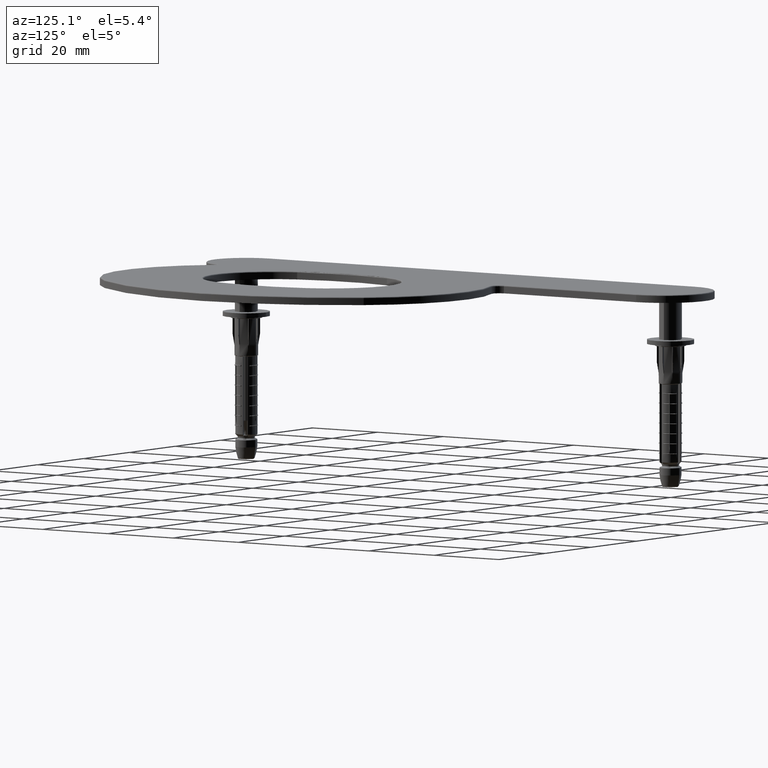
[diagram: clean part render]
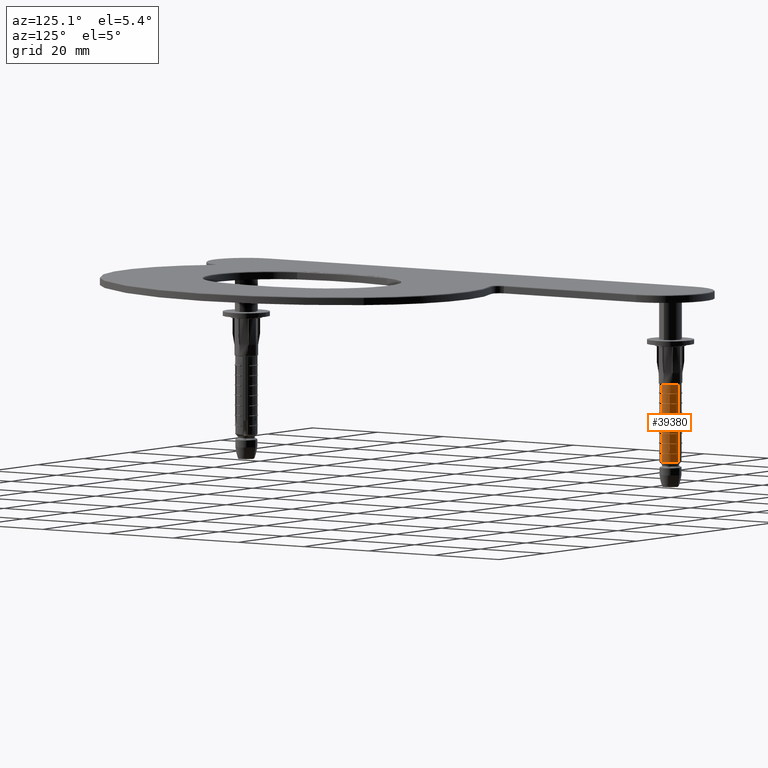
[diagram: same view with one face highlighted and labeled with its STEP entity id]
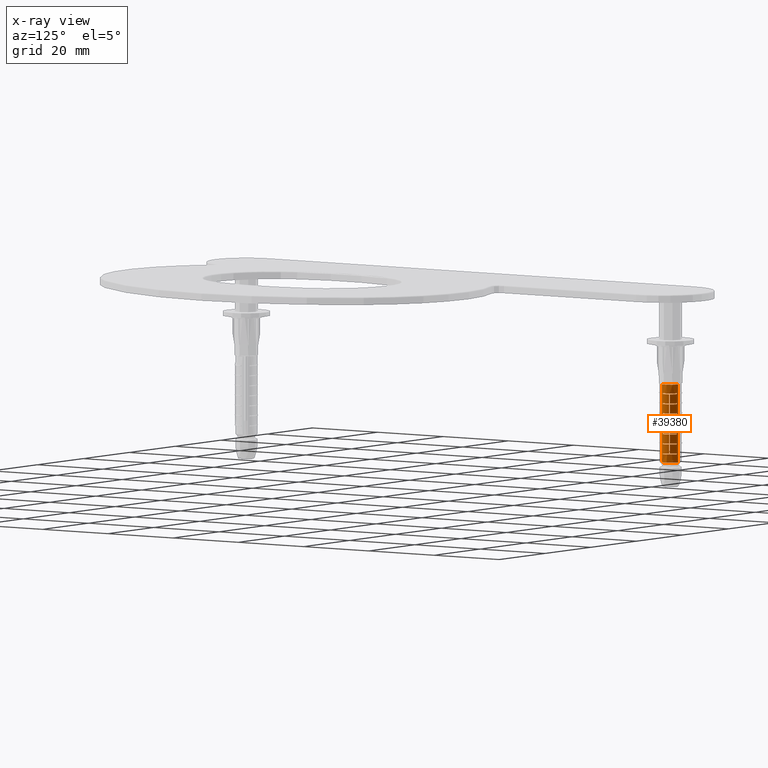
[diagram: x-ray of the same camera — body ghosted, the highlighted face saturated]
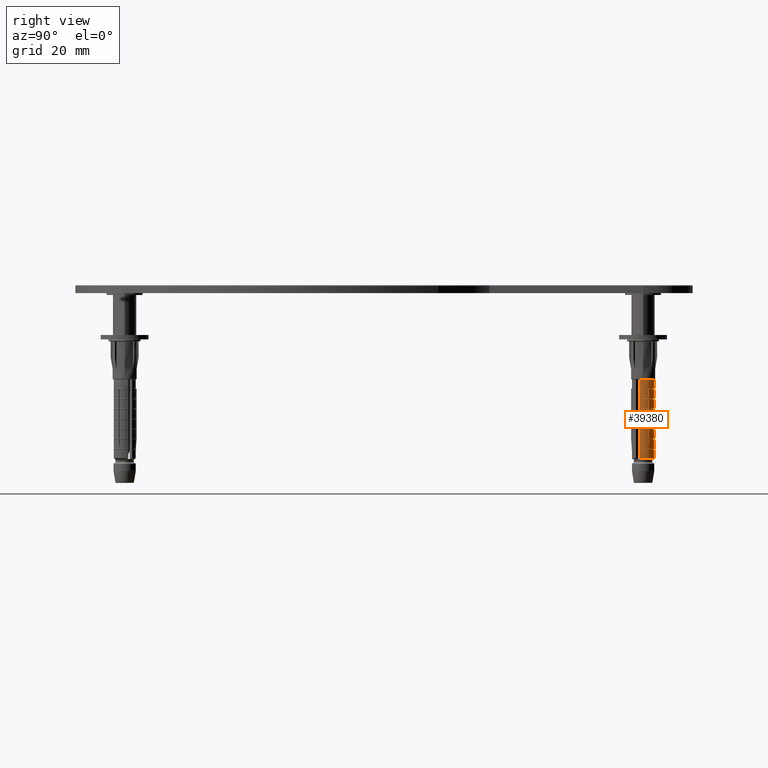
[diagram: same view with one face highlighted and labeled with its STEP entity id]
A machine part, auxiliary view. The second image highlights one B-rep face of the part: STEP entity #39380.
The next image is the same camera in x-ray: the body ghosted, the highlighted face saturated — about 0% of this face is hidden behind the body in this view.
A second angle (right view) of the same face is appended — the face is thin or edge-on in the first view.
In plain terms, the highlighted cylindrical surface (edge-blend (fillet) strip) has radius 2.8 mm, axis along (0, 0, -1).
Its self-contained STEP definition (entity closure, byte-faithful):
#49 = ORIENTED_EDGE ( 'NONE', *, *, #6726, .T. ) ;
#77 = CARTESIAN_POINT ( 'NONE',  ( -2.483748580117769222, -1.292668940898235252, -36.00000000000000000 ) ) ;
#89 = CARTESIAN_POINT ( 'NONE',  ( -2.361358431559909210, -1.504654896546356424, -36.00000000000000000 ) ) ;
#115 = DIRECTION ( 'NONE',  ( -4.540655609425253692E-18, 4.182044590197414905E-18, 1.000000000000000000 ) ) ;
#459 = VERTEX_POINT ( 'NONE', #19721 ) ;
#529 = CARTESIAN_POINT ( 'NONE',  ( -2.361358431559909210, -1.504654896546356424, -36.00000000000000000 ) ) ;
#640 = ORIENTED_EDGE ( 'NONE', *, *, #37300, .T. ) ;
#813 = CARTESIAN_POINT ( 'NONE',  ( -2.483748580117769222, -1.292668940898235030, -36.00000000000000000 ) ) ;
#876 = CARTESIAN_POINT ( 'NONE',  ( -2.767673818475162140, 0.4242424242424546743, -36.00000000000000000 ) ) ;
#1065 = CARTESIAN_POINT ( 'NONE',  ( -2.460687915453515284, -1.336044528726880731, -27.57499999999999574 ) ) ;
#1071 = CARTESIAN_POINT ( 'NONE',  ( -2.393379353113320729, -1.453181087163902374, -27.47499999999999076 ) ) ;
#1154 = VERTEX_POINT ( 'NONE', #15233 ) ;
#1242 = AXIS2_PLACEMENT_3D ( 'NONE', #15415, #37140, #10313 ) ;
#1484 = CARTESIAN_POINT ( 'NONE',  ( -1.016432192480563934, -2.608997048309782407, -22.62500000000000000 ) ) ;
#1603 = CARTESIAN_POINT ( 'NONE',  ( -2.372170073811461055, -1.487569355360297108, -27.08807541499458083 ) ) ;
#1695 = EDGE_CURVE ( 'NONE', #6835, #35829, #36239, .T. ) ;
#1731 = EDGE_CURVE ( 'NONE', #37082, #8415, #13808, .T. ) ;
#1787 = EDGE_CURVE ( 'NONE', #8415, #15973, #19591, .T. ) ;
#1789 = CARTESIAN_POINT ( 'NONE',  ( 6.742873579996503373E-17, -6.210336216443161118E-17, -14.84999999999999964 ) ) ;
#1815 = VERTEX_POINT ( 'NONE', #37979 ) ;
#2101 = DIRECTION ( 'NONE',  ( 0.000000000000000000, 6.803593328596414068E-18, 1.000000000000000000 ) ) ;
#2254 = CARTESIAN_POINT ( 'NONE',  ( -1.016432192480564378, -2.608997048309782407, -20.10000000000000142 ) ) ;
#2301 = EDGE_CURVE ( 'NONE', #10385, #6835, #17183, .T. ) ;
#2321 = CARTESIAN_POINT ( 'NONE',  ( 1.141974885770451016E-16, -1.051784214434649850E-16, -25.14999999999999858 ) ) ;
#2377 = DIRECTION ( 'NONE',  ( -0.000000000000000000, -6.803593328596414068E-18, -1.000000000000000000 ) ) ;
#2496 = CARTESIAN_POINT ( 'NONE',  ( -2.483748580117769222, -1.292668940898234586, -19.89999999999999858 ) ) ;
#2679 = CARTESIAN_POINT ( 'NONE',  ( -1.016432192480563712, -2.608997048309782407, -36.00000000000000000 ) ) ;
#2697 = VERTEX_POINT ( 'NONE', #31034 ) ;
#2748 = LINE ( 'NONE', #77, #19473 ) ;
#2810 = CARTESIAN_POINT ( 'NONE',  ( -2.361358431559908766, -1.504654896546356424, -22.62500000000000000 ) ) ;
#2812 = ORIENTED_EDGE ( 'NONE', *, *, #38035, .T. ) ;
#2945 = CIRCLE ( 'NONE', #18300, 2.799999999999999822 ) ;
#2960 = AXIS2_PLACEMENT_3D ( 'NONE', #7755, #10594, #16742 ) ;
#3011 = VECTOR ( 'NONE', #26834, 1000.000000000000000 ) ;
#3118 = DIRECTION ( 'NONE',  ( 0.8660254037844433705, 0.4999999999999920064, 0.000000000000000000 ) ) ;
#3241 = CIRCLE ( 'NONE', #28605, 2.799999999999999822 ) ;
#3243 = CARTESIAN_POINT ( 'NONE',  ( 1.141974885770451016E-16, -1.051784214434649850E-16, -25.14999999999999858 ) ) ;
#3266 = AXIS2_PLACEMENT_3D ( 'NONE', #1789, #23405, #17433 ) ;
#3351 = DIRECTION ( 'NONE',  ( -4.540655609425253692E-18, 4.182044590197414905E-18, 1.000000000000000000 ) ) ;
#3387 = DIRECTION ( 'NONE',  ( 0.8660254037844433705, 0.4999999999999920064, 0.000000000000000000 ) ) ;
#3434 = ORIENTED_EDGE ( 'NONE', *, *, #35799, .T. ) ;
#3511 = EDGE_CURVE ( 'NONE', #9466, #33526, #14199, .T. ) ;
#3630 = DIRECTION ( 'NONE',  ( 0.8660254037844433705, 0.4999999999999920064, 0.000000000000000000 ) ) ;
#3678 = ORIENTED_EDGE ( 'NONE', *, *, #39284, .F. ) ;
#3721 = EDGE_CURVE ( 'NONE', #33701, #26721, #5086, .T. ) ;
#3727 = DIRECTION ( 'NONE',  ( -0.000000000000000000, -6.803593328596414068E-18, -1.000000000000000000 ) ) ;
#3750 = VECTOR ( 'NONE', #24966, 1000.000000000000000 ) ;
#3757 = DIRECTION ( 'NONE',  ( 0.000000000000000000, 6.803593328596414068E-18, 1.000000000000000000 ) ) ;
#3808 = DIRECTION ( 'NONE',  ( 0.8660254037844433705, 0.4999999999999920064, 0.000000000000000000 ) ) ;
#3902 = ORIENTED_EDGE ( 'NONE', *, *, #25455, .T. ) ;
#4131 = VECTOR ( 'NONE', #36120, 1000.000000000000000 ) ;
#4299 = ORIENTED_EDGE ( 'NONE', *, *, #25764, .F. ) ;
#4342 = DIRECTION ( 'NONE',  ( -0.000000000000000000, -6.803593328596414068E-18, -1.000000000000000000 ) ) ;
#4366 = DIRECTION ( 'NONE',  ( -5.892084659582852829E-18, -1.020538999289456486E-17, -1.000000000000000000 ) ) ;
#4473 = CARTESIAN_POINT ( 'NONE',  ( 7.889389121376377345E-17, -7.266302475468007665E-17, -17.37499999999999645 ) ) ;
#4487 = ORIENTED_EDGE ( 'NONE', *, *, #27892, .T. ) ;
#4536 = EDGE_CURVE ( 'NONE', #17000, #37439, #17544, .T. ) ;
#4548 = FACE_BOUND ( 'NONE', #28893, .T. ) ;
#4646 = DIRECTION ( 'NONE',  ( 0.000000000000000000, 6.803593328596414068E-18, 1.000000000000000000 ) ) ;
#4761 = VERTEX_POINT ( 'NONE', #5365 ) ;
#4767 = CARTESIAN_POINT ( 'NONE',  ( -2.361358431559908766, -1.504654896546356424, -25.14999999999999858 ) ) ;
#4789 = CARTESIAN_POINT ( 'NONE',  ( -0.6222222222222226762, -2.729988920521994267, -36.00000000000000000 ) ) ;
#4961 = ORIENTED_EDGE ( 'NONE', *, *, #12246, .F. ) ;
#5027 = CYLINDRICAL_SURFACE ( 'NONE', #36083, 2.799999999999999822 ) ;
#5052 = VECTOR ( 'NONE', #18547, 1000.000000000000000 ) ;
#5086 = CIRCLE ( 'NONE', #26464, 2.799999999999999822 ) ;
#5096 = DIRECTION ( 'NONE',  ( -4.540655609425253692E-18, 4.182044590197414905E-18, 1.000000000000000000 ) ) ;
#5114 = ORIENTED_EDGE ( 'NONE', *, *, #36093, .T. ) ;
#5182 = EDGE_CURVE ( 'NONE', #15628, #20308, #5521, .T. ) ;
#5209 = EDGE_CURVE ( 'NONE', #39145, #13306, #39409, .T. ) ;
#5327 = EDGE_CURVE ( 'NONE', #9466, #35493, #21531, .T. ) ;
#5332 = AXIS2_PLACEMENT_3D ( 'NONE', #20093, #31751, #3808 ) ;
#5365 = CARTESIAN_POINT ( 'NONE',  ( -2.767673818475162140, 0.4242424242424547298, -12.52500000000000213 ) ) ;
#5421 = CARTESIAN_POINT ( 'NONE',  ( -2.767673818475162140, 0.4242424242424543412, -36.00000000000000000 ) ) ;
#5481 = CIRCLE ( 'NONE', #32727, 2.799999999999999378 ) ;
#5521 = LINE ( 'NONE', #4789, #16546 ) ;
#5569 = CARTESIAN_POINT ( 'NONE',  ( -2.361358431559908766, -1.504654896546356424, -20.10000000000000142 ) ) ;
#5592 = LINE ( 'NONE', #36518, #34778 ) ;
#5647 = VERTEX_POINT ( 'NONE', #20552 ) ;
#5708 = CARTESIAN_POINT ( 'NONE',  ( -2.361358431559909210, -1.504654896546356424, -36.00000000000000000 ) ) ;
#5756 = ORIENTED_EDGE ( 'NONE', *, *, #20860, .F. ) ;
#5818 = ORIENTED_EDGE ( 'NONE', *, *, #32358, .F. ) ;
#5961 = ORIENTED_EDGE ( 'NONE', *, *, #7132, .T. ) ;
#6083 = CARTESIAN_POINT ( 'NONE',  ( -2.483748580117769222, -1.292668940898234808, -26.31052289814997636 ) ) ;
#6093 = CIRCLE ( 'NONE', #39522, 2.799999999999999822 ) ;
#6283 = B_SPLINE_CURVE_WITH_KNOTS ( 'NONE', 3,
 ( #38145, #29162, #29007, #7200, #1603, #37884, #28609, #1071 ),
 .UNSPECIFIED., .F., .F.,
 ( 4, 2, 2, 4 ),
 ( 0.000000000000000000, 0.0005836036533015558948, 0.0008754054799523338423, 0.001167207306603111790 ),
 .UNSPECIFIED. ) ;
#6317 = CARTESIAN_POINT ( 'NONE',  ( -2.767673818475161696, 0.4242424242424542857, -27.47499999999999076 ) ) ;
#6389 = ORIENTED_EDGE ( 'NONE', *, *, #26496, .F. ) ;
#6640 = CARTESIAN_POINT ( 'NONE',  ( -2.424871130596440771, -1.399999999999977263, -12.32500000000000107 ) ) ;
#6666 = ORIENTED_EDGE ( 'NONE', *, *, #5327, .T. ) ;
#6726 = EDGE_CURVE ( 'NONE', #33701, #22011, #34351, .T. ) ;
#6754 = DIRECTION ( 'NONE',  ( -4.540655609425253692E-18, 4.182044590197414905E-18, 1.000000000000000000 ) ) ;
#6787 = EDGE_CURVE ( 'NONE', #4761, #21786, #36697, .T. ) ;
#6835 = VERTEX_POINT ( 'NONE', #16468 ) ;
#7132 = EDGE_CURVE ( 'NONE', #2697, #14025, #15689, .T. ) ;
#7200 = CARTESIAN_POINT ( 'NONE',  ( -2.369438809451833272, -1.491903281495504885, -26.99099585964414771 ) ) ;
#7210 = CIRCLE ( 'NONE', #31845, 2.799999999999999378 ) ;
#7235 = CARTESIAN_POINT ( 'NONE',  ( 5.687171150805130437E-17, -5.238010849222262684E-17, -12.52500000000000213 ) ) ;
#7239 = ORIENTED_EDGE ( 'NONE', *, *, #8321, .T. ) ;
#7294 = CARTESIAN_POINT ( 'NONE',  ( -1.016432192480563712, -2.608997048309781963, -27.67499999999999361 ) ) ;
#7361 = DIRECTION ( 'NONE',  ( -4.540655609425253692E-18, 4.182044590197414905E-18, 1.000000000000000000 ) ) ;
#7412 = AXIS2_PLACEMENT_3D ( 'NONE', #3243, #24610, #3118 ) ;
#7495 = VERTEX_POINT ( 'NONE', #35760 ) ;
#7532 = VERTEX_POINT ( 'NONE', #17644 ) ;
#7656 = CIRCLE ( 'NONE', #24659, 2.799999999999999378 ) ;
#7660 = VECTOR ( 'NONE', #4646, 1000.000000000000000 ) ;
#7697 = CARTESIAN_POINT ( 'NONE',  ( -2.455181414339814072, -1.346136777107122207, -27.47499999999999076 ) ) ;
#7755 = CARTESIAN_POINT ( 'NONE',  ( 9.035904662756253783E-17, -8.322268734492854212E-17, -19.89999999999999858 ) ) ;
#7819 = CARTESIAN_POINT ( 'NONE',  ( -2.476745546490385141, -1.306042560950300802, -26.99099585964534498 ) ) ;
#7864 = AXIS2_PLACEMENT_3D ( 'NONE', #9144, #30788, #12504 ) ;
#7913 = CIRCLE ( 'NONE', #7864, 2.799999999999999822 ) ;
#7955 = CIRCLE ( 'NONE', #14281, 2.799999999999999822 ) ;
#7998 = CIRCLE ( 'NONE', #35514, 2.799999999999999822 ) ;
#8040 = CARTESIAN_POINT ( 'NONE',  ( 9.126717774944759751E-17, -8.405909626296804174E-17, -20.10000000000000142 ) ) ;
#8141 = EDGE_CURVE ( 'NONE', #22011, #8732, #7998, .T. ) ;
#8166 = VERTEX_POINT ( 'NONE', #23195 ) ;
#8321 = EDGE_CURVE ( 'NONE', #8732, #14788, #2748, .T. ) ;
#8415 = VERTEX_POINT ( 'NONE', #21843 ) ;
#8485 = CARTESIAN_POINT ( 'NONE',  ( -2.767673818475161696, 0.4242424242424544523, -19.89999999999999858 ) ) ;
#8543 = CARTESIAN_POINT ( 'NONE',  ( -2.361358431559908322, -1.504654896546355980, -17.37499999999999645 ) ) ;
#8652 = EDGE_CURVE ( 'NONE', #25713, #27324, #7955, .T. ) ;
#8661 = DIRECTION ( 'NONE',  ( 0.000000000000000000, 1.000000000000000000, 0.000000000000000000 ) ) ;
#8662 = CARTESIAN_POINT ( 'NONE',  ( -2.483748580117769222, -1.292668940898234808, -22.42499999999999716 ) ) ;
#8719 = EDGE_CURVE ( 'NONE', #32670, #1154, #26163, .T. ) ;
#8732 = VERTEX_POINT ( 'NONE', #8662 ) ;
#8816 = VECTOR ( 'NONE', #2377, 1000.000000000000000 ) ;
#8868 = VECTOR ( 'NONE', #2101, 1000.000000000000000 ) ;
#8982 = LINE ( 'NONE', #19111, #23317 ) ;
#9019 = DIRECTION ( 'NONE',  ( 0.000000000000000000, 6.803593328596414068E-18, 1.000000000000000000 ) ) ;
#9083 = DIRECTION ( 'NONE',  ( 0.8660254037844433705, 0.4999999999999920064, 0.000000000000000000 ) ) ;
#9144 = CARTESIAN_POINT ( 'NONE',  ( 1.256626439908438660E-16, -1.157380840337134382E-16, -27.67499999999999361 ) ) ;
#9182 = DIRECTION ( 'NONE',  ( 0.8660254037844433705, 0.4999999999999920064, 0.000000000000000000 ) ) ;
#9197 = EDGE_CURVE ( 'NONE', #17223, #35829, #7913, .T. ) ;
#9203 = CARTESIAN_POINT ( 'NONE',  ( -2.361358431559908322, -1.504654896546355980, -12.52500000000000213 ) ) ;
#9423 = ORIENTED_EDGE ( 'NONE', *, *, #36022, .T. ) ;
#9466 = VERTEX_POINT ( 'NONE', #17176 ) ;
#9546 = EDGE_CURVE ( 'NONE', #39368, #18718, #32775, .T. ) ;
#9567 = ORIENTED_EDGE ( 'NONE', *, *, #9546, .T. ) ;
#9660 = LINE ( 'NONE', #5421, #3011 ) ;
#9739 = CARTESIAN_POINT ( 'NONE',  ( -2.483748580117769222, -1.292668940898234808, -25.14999999999999858 ) ) ;
#9818 = ORIENTED_EDGE ( 'NONE', *, *, #35015, .F. ) ;
#10081 = ORIENTED_EDGE ( 'NONE', *, *, #16140, .T. ) ;
#10114 = DIRECTION ( 'NONE',  ( 0.8660254037844433705, 0.4999999999999920064, 0.000000000000000000 ) ) ;
#10209 = VECTOR ( 'NONE', #3757, 1000.000000000000000 ) ;
#10313 = DIRECTION ( 'NONE',  ( 0.8660254037844433705, 0.4999999999999920064, 0.000000000000000000 ) ) ;
#10328 = VECTOR ( 'NONE', #19590, 1000.000000000000000 ) ;
#10368 = DIRECTION ( 'NONE',  ( -4.540655609425253692E-18, 4.182044590197414905E-18, 1.000000000000000000 ) ) ;
#10385 = VERTEX_POINT ( 'NONE', #32258 ) ;
#10461 = DIRECTION ( 'NONE',  ( -0.000000000000000000, -6.803593328596414068E-18, -1.000000000000000000 ) ) ;
#10502 = AXIS2_PLACEMENT_3D ( 'NONE', #39437, #21089, #27512 ) ;
#10512 = CARTESIAN_POINT ( 'NONE',  ( 1.132893574551600419E-16, -1.043420125254254854E-16, -24.94999999999999574 ) ) ;
#10527 = DIRECTION ( 'NONE',  ( 0.8660254037844433705, 0.4999999999999920064, 0.000000000000000000 ) ) ;
#10594 = DIRECTION ( 'NONE',  ( -4.540655609425253692E-18, 4.182044590197414905E-18, 1.000000000000000000 ) ) ;
#10808 = CARTESIAN_POINT ( 'NONE',  ( -2.767673818475162140, 0.4242424242424544523, -25.14999999999999858 ) ) ;
#10840 = VECTOR ( 'NONE', #28279, 1000.000000000000000 ) ;
#10854 = EDGE_CURVE ( 'NONE', #21138, #39368, #24578, .T. ) ;
#11001 = CARTESIAN_POINT ( 'NONE',  ( -1.016432192480563712, -2.608997048309781963, -22.42499999999999716 ) ) ;
#11066 = LINE ( 'NONE', #13568, #33103 ) ;
#11278 = ORIENTED_EDGE ( 'NONE', *, *, #39064, .T. ) ;
#11299 = LINE ( 'NONE', #16225, #10840 ) ;
#11309 = VERTEX_POINT ( 'NONE', #14588 ) ;
#11317 = CARTESIAN_POINT ( 'NONE',  ( -2.455181414339814072, -1.346136777107122207, -27.47499999999999076 ) ) ;
#11424 = CARTESIAN_POINT ( 'NONE',  ( -2.483748580117769222, -1.292668940898234808, -20.10000000000000142 ) ) ;
#11479 = ORIENTED_EDGE ( 'NONE', *, *, #3511, .F. ) ;
#11541 = EDGE_LOOP ( 'NONE', ( #11278, #27306, #22735, #32766 ) ) ;
#11801 = VERTEX_POINT ( 'NONE', #17103 ) ;
#12229 = CIRCLE ( 'NONE', #39385, 2.799999999999999822 ) ;
#12246 = EDGE_CURVE ( 'NONE', #19438, #1815, #32177, .T. ) ;
#12274 = DIRECTION ( 'NONE',  ( 0.8660254037844433705, 0.4999999999999920064, 0.000000000000000000 ) ) ;
#12284 = DIRECTION ( 'NONE',  ( 0.000000000000000000, 6.803593328596413297E-18, 1.000000000000000000 ) ) ;
#12309 = LINE ( 'NONE', #36253, #4131 ) ;
#12384 = VECTOR ( 'NONE', #10461, 1000.000000000000000 ) ;
#12412 = ORIENTED_EDGE ( 'NONE', *, *, #37779, .T. ) ;
#12504 = DIRECTION ( 'NONE',  ( 0.8660254037844433705, 0.4999999999999920064, 0.000000000000000000 ) ) ;
#12572 = CARTESIAN_POINT ( 'NONE',  ( 9.126717774944759751E-17, -8.405909626296804174E-17, -20.10000000000000142 ) ) ;
#12588 = CARTESIAN_POINT ( 'NONE',  ( 5.596358038616625703E-17, -5.154369957418313338E-17, -12.32500000000000107 ) ) ;
#12715 = AXIS2_PLACEMENT_3D ( 'NONE', #7235, #7361, #38046 ) ;
#12722 = AXIS2_PLACEMENT_3D ( 'NONE', #18270, #36769, #18401 ) ;
#12740 = DIRECTION ( 'NONE',  ( 0.000000000000000000, 1.000000000000000000, 0.000000000000000000 ) ) ;
#12793 = CARTESIAN_POINT ( 'NONE',  ( -1.016432192480563490, -2.608997048309781519, -12.32500000000000107 ) ) ;
#12899 = ORIENTED_EDGE ( 'NONE', *, *, #17646, .T. ) ;
#12927 = DIRECTION ( 'NONE',  ( 0.8660254037844433705, 0.4999999999999920064, 0.000000000000000000 ) ) ;
#13102 = EDGE_CURVE ( 'NONE', #17223, #26468, #9660, .T. ) ;
#13168 = LINE ( 'NONE', #38770, #8868 ) ;
#13276 = CARTESIAN_POINT ( 'NONE',  ( -1.016432192480563712, -2.608997048309781519, -14.84999999999999964 ) ) ;
#13298 = CARTESIAN_POINT ( 'NONE',  ( -2.767673818475162140, 0.4242424242424543412, -27.67499999999999361 ) ) ;
#13306 = VERTEX_POINT ( 'NONE', #1484 ) ;
#13568 = CARTESIAN_POINT ( 'NONE',  ( -1.016432192480563712, -2.608997048309782407, -36.00000000000000000 ) ) ;
#13665 = CIRCLE ( 'NONE', #7412, 2.799999999999999822 ) ;
#13669 = DIRECTION ( 'NONE',  ( -4.540655609425253692E-18, 4.182044590197414905E-18, 1.000000000000000000 ) ) ;
#13699 = CIRCLE ( 'NONE', #37371, 2.799999999999999822 ) ;
#13703 = LINE ( 'NONE', #19770, #16118 ) ;
#13756 = DIRECTION ( 'NONE',  ( 0.8660254037844433705, 0.4999999999999920064, 0.000000000000000000 ) ) ;
#13808 = LINE ( 'NONE', #15887, #22886 ) ;
#13839 = VERTEX_POINT ( 'NONE', #30598 ) ;
#13897 = EDGE_CURVE ( 'NONE', #21490, #29757, #24004, .T. ) ;
#14025 = VERTEX_POINT ( 'NONE', #6640 ) ;
#14123 = CARTESIAN_POINT ( 'NONE',  ( -2.463716330369619456, -1.330570181226455873, -27.37920234786883356 ) ) ;
#14135 = CIRCLE ( 'NONE', #26611, 2.799999999999999378 ) ;
#14199 = CIRCLE ( 'NONE', #16430, 2.799999999999999378 ) ;
#14281 = AXIS2_PLACEMENT_3D ( 'NONE', #8040, #13669, #35165 ) ;
#14359 = DIRECTION ( 'NONE',  ( 0.8660254037844433705, 0.4999999999999920064, 0.000000000000000000 ) ) ;
#14462 = CARTESIAN_POINT ( 'NONE',  ( -2.460687915453515728, -1.336044528726880731, -22.62500000000000000 ) ) ;
#14482 = EDGE_CURVE ( 'NONE', #17300, #1815, #11066, .T. ) ;
#14588 = CARTESIAN_POINT ( 'NONE',  ( -2.361358431559908766, -1.504654896546356424, -22.42499999999999716 ) ) ;
#14788 = VERTEX_POINT ( 'NONE', #11424 ) ;
#14827 = CARTESIAN_POINT ( 'NONE',  ( -2.361358431559909210, -1.504654896546356424, -36.00000000000000000 ) ) ;
#14951 = ORIENTED_EDGE ( 'NONE', *, *, #8719, .T. ) ;
#15046 = CARTESIAN_POINT ( 'NONE',  ( 1.027323331632463865E-16, -9.461875885321650721E-17, -22.62500000000000000 ) ) ;
#15185 = DIRECTION ( 'NONE',  ( -0.000000000000000000, -6.803593328596414068E-18, -1.000000000000000000 ) ) ;
#15207 = CARTESIAN_POINT ( 'NONE',  ( 7.980202233564885778E-17, -7.349943367271956395E-17, -17.57499999999999929 ) ) ;
#15233 = CARTESIAN_POINT ( 'NONE',  ( -1.016432192480563934, -2.608997048309782407, -12.52500000000000213 ) ) ;
#15280 = CARTESIAN_POINT ( 'NONE',  ( -1.016432192480563712, -2.608997048309781519, -17.37499999999999645 ) ) ;
#15415 = CARTESIAN_POINT ( 'NONE',  ( 7.889389121376377345E-17, -7.266302475468007665E-17, -17.37499999999999645 ) ) ;
#15438 = CARTESIAN_POINT ( 'NONE',  ( -2.361358431559908322, -1.504654896546355980, -17.57499999999999929 ) ) ;
#15628 = VERTEX_POINT ( 'NONE', #25420 ) ;
#15632 = EDGE_CURVE ( 'NONE', #16644, #22959, #2945, .T. ) ;
#15689 = CIRCLE ( 'NONE', #20896, 2.799999999999999378 ) ;
#15823 = LINE ( 'NONE', #31407, #7660 ) ;
#15887 = CARTESIAN_POINT ( 'NONE',  ( -2.767673818475162140, 0.4242424242424546188, -36.00000000000000000 ) ) ;
#15949 = ORIENTED_EDGE ( 'NONE', *, *, #8652, .F. ) ;
#15973 = VERTEX_POINT ( 'NONE', #34466 ) ;
#15999 = EDGE_CURVE ( 'NONE', #4761, #2697, #15823, .T. ) ;
#16118 = VECTOR ( 'NONE', #4342, 1000.000000000000000 ) ;
#16140 = EDGE_CURVE ( 'NONE', #14025, #32670, #7210, .T. ) ;
#16225 = CARTESIAN_POINT ( 'NONE',  ( -2.675350868333212784, 0.8261342090173533492, -36.00000000000000000 ) ) ;
#16303 = VECTOR ( 'NONE', #4366, 1000.000000000000000 ) ;
#16366 = CARTESIAN_POINT ( 'NONE',  ( -2.483748580117769222, -1.292668940898235030, -36.00000000000000000 ) ) ;
#16430 = AXIS2_PLACEMENT_3D ( 'NONE', #17098, #38514, #10527 ) ;
#16468 = CARTESIAN_POINT ( 'NONE',  ( -1.016432192480563490, -2.608997048309781519, -27.47499999999999076 ) ) ;
#16497 = CARTESIAN_POINT ( 'NONE',  ( -1.016432192480563934, -2.608997048309781519, -19.89999999999999858 ) ) ;
#16546 = VECTOR ( 'NONE', #26592, 1000.000000000000000 ) ;
#16555 = VERTEX_POINT ( 'NONE', #16497 ) ;
#16644 = VERTEX_POINT ( 'NONE', #26126 ) ;
#16742 = DIRECTION ( 'NONE',  ( 0.8660254037844433705, 0.4999999999999920064, 0.000000000000000000 ) ) ;
#16804 = DIRECTION ( 'NONE',  ( 0.8660254037844433705, 0.4999999999999920064, 0.000000000000000000 ) ) ;
#17000 = VERTEX_POINT ( 'NONE', #6083 ) ;
#17098 = CARTESIAN_POINT ( 'NONE',  ( 6.833686692185005643E-17, -6.293977108247109848E-17, -15.05000000000000071 ) ) ;
#17103 = CARTESIAN_POINT ( 'NONE',  ( -2.361358431559908766, -1.504654896546356202, -19.89999999999999858 ) ) ;
#17176 = CARTESIAN_POINT ( 'NONE',  ( -2.361358431559908322, -1.504654896546355980, -15.05000000000000071 ) ) ;
#17183 = CIRCLE ( 'NONE', #26934, 2.799999999999999822 ) ;
#17185 = DIRECTION ( 'NONE',  ( 0.8660254037844433705, 0.4999999999999920064, 0.000000000000000000 ) ) ;
#17223 = VERTEX_POINT ( 'NONE', #13298 ) ;
#17277 = CARTESIAN_POINT ( 'NONE',  ( -2.460687915453515284, -1.336044528726880287, -24.94999999999999574 ) ) ;
#17300 = VERTEX_POINT ( 'NONE', #22187 ) ;
#17351 = ORIENTED_EDGE ( 'NONE', *, *, #18604, .T. ) ;
#17404 = CARTESIAN_POINT ( 'NONE',  ( -1.016432192480563934, -2.608997048309781963, -36.00000000000000000 ) ) ;
#17433 = DIRECTION ( 'NONE',  ( 0.8660254037844433705, 0.4999999999999920064, 0.000000000000000000 ) ) ;
#17544 = LINE ( 'NONE', #37538, #10328 ) ;
#17644 = CARTESIAN_POINT ( 'NONE',  ( -2.483748580117768778, -1.292668940898234364, -17.57499999999999929 ) ) ;
#17646 = EDGE_CURVE ( 'NONE', #25713, #11309, #17875, .T. ) ;
#17744 = ORIENTED_EDGE ( 'NONE', *, *, #23949, .T. ) ;
#17799 = CIRCLE ( 'NONE', #12722, 2.799999999999999378 ) ;
#17875 = LINE ( 'NONE', #529, #33593 ) ;
#18077 = LINE ( 'NONE', #27760, #5052 ) ;
#18154 = CARTESIAN_POINT ( 'NONE',  ( -2.361358431559909210, -1.504654896546356424, -36.00000000000000000 ) ) ;
#18215 = ORIENTED_EDGE ( 'NONE', *, *, #26931, .T. ) ;
#18270 = CARTESIAN_POINT ( 'NONE',  ( 6.742873579996503373E-17, -6.210336216443161118E-17, -14.84999999999999964 ) ) ;
#18300 = AXIS2_PLACEMENT_3D ( 'NONE', #34628, #21956, #3630 ) ;
#18392 = ORIENTED_EDGE ( 'NONE', *, *, #10854, .T. ) ;
#18401 = DIRECTION ( 'NONE',  ( 0.8660254037844433705, 0.4999999999999920064, 0.000000000000000000 ) ) ;
#18547 = DIRECTION ( 'NONE',  ( -0.000000000000000000, -6.803593328596414068E-18, -1.000000000000000000 ) ) ;
#18604 = EDGE_CURVE ( 'NONE', #24775, #13839, #17799, .T. ) ;
#18718 = VERTEX_POINT ( 'NONE', #13276 ) ;
#18776 = CARTESIAN_POINT ( 'NONE',  ( -2.361358431559908322, -1.504654896546355980, -14.84999999999999964 ) ) ;
#18978 = DIRECTION ( 'NONE',  ( 0.000000000000000000, 6.803593328596414068E-18, 1.000000000000000000 ) ) ;
#19111 = CARTESIAN_POINT ( 'NONE',  ( -2.767673818475162140, 0.4242424242424544523, -36.00000000000000000 ) ) ;
#19188 = CARTESIAN_POINT ( 'NONE',  ( -1.016432192480563934, -2.608997048309781963, -36.00000000000000000 ) ) ;
#19211 = VERTEX_POINT ( 'NONE', #21179 ) ;
#19438 = VERTEX_POINT ( 'NONE', #4767 ) ;
#19473 = VECTOR ( 'NONE', #9019, 1000.000000000000000 ) ;
#19512 = DIRECTION ( 'NONE',  ( -4.540655609425253692E-18, 4.182044590197414905E-18, 1.000000000000000000 ) ) ;
#19570 = ORIENTED_EDGE ( 'NONE', *, *, #2301, .T. ) ;
#19590 = DIRECTION ( 'NONE',  ( 0.000000000000000000, 6.803593328596414068E-18, 1.000000000000000000 ) ) ;
#19591 = CIRCLE ( 'NONE', #33823, 2.799999999999999378 ) ;
#19721 = CARTESIAN_POINT ( 'NONE',  ( -2.767673818475162140, 0.4242424242424545078, -20.10000000000000142 ) ) ;
#19731 = ORIENTED_EDGE ( 'NONE', *, *, #14482, .T. ) ;
#19770 = CARTESIAN_POINT ( 'NONE',  ( -2.361358431559909210, -1.504654896546356424, -36.00000000000000000 ) ) ;
#19904 = LINE ( 'NONE', #876, #29454 ) ;
#20016 = ORIENTED_EDGE ( 'NONE', *, *, #9197, .F. ) ;
#20093 = CARTESIAN_POINT ( 'NONE',  ( 1.018242020413613022E-16, -9.378234993517700759E-17, -22.42499999999999716 ) ) ;
#20157 = CARTESIAN_POINT ( 'NONE',  ( -2.483748580118025018, -1.292668940897744312, -26.50506116889642172 ) ) ;
#20308 = VERTEX_POINT ( 'NONE', #37241 ) ;
#20516 = CARTESIAN_POINT ( 'NONE',  ( 1.247545128689588310E-16, -1.149016751156739262E-16, -27.47499999999999076 ) ) ;
#20552 = CARTESIAN_POINT ( 'NONE',  ( -2.361358431559908766, -1.504654896546356424, -26.31052289814725853 ) ) ;
#20672 = CARTESIAN_POINT ( 'NONE',  ( -2.482270526863567195, -1.295529128873127211, -26.69959461916819521 ) ) ;
#20704 = CARTESIAN_POINT ( 'NONE',  ( 5.596358038616625703E-17, -5.154369957418313338E-17, -12.32500000000000107 ) ) ;
#20781 = CIRCLE ( 'NONE', #1242, 2.799999999999999378 ) ;
#20860 = EDGE_CURVE ( 'NONE', #25518, #19211, #7656, .T. ) ;
#20891 = LINE ( 'NONE', #14827, #21838 ) ;
#20896 = AXIS2_PLACEMENT_3D ( 'NONE', #12588, #3351, #30746 ) ;
#21041 = VECTOR ( 'NONE', #37695, 1000.000000000000000 ) ;
#21089 = DIRECTION ( 'NONE',  ( -0.000000000000000000, -6.803593328596413297E-18, -1.000000000000000000 ) ) ;
#21138 = VERTEX_POINT ( 'NONE', #9203 ) ;
#21179 = CARTESIAN_POINT ( 'NONE',  ( -2.483748580117768778, -1.292668940898234364, -15.05000000000000071 ) ) ;
#21224 = CARTESIAN_POINT ( 'NONE',  ( -2.675350868333212340, 0.8261342090173534602, -10.09999999999999787 ) ) ;
#21490 = VERTEX_POINT ( 'NONE', #8485 ) ;
#21531 = LINE ( 'NONE', #5708, #31564 ) ;
#21629 = EDGE_CURVE ( 'NONE', #29757, #7532, #33954, .T. ) ;
#21750 = CARTESIAN_POINT ( 'NONE',  ( 6.833686692185005643E-17, -6.293977108247109848E-17, -15.05000000000000071 ) ) ;
#21786 = VERTEX_POINT ( 'NONE', #33039 ) ;
#21838 = VECTOR ( 'NONE', #27139, 1000.000000000000000 ) ;
#21843 = CARTESIAN_POINT ( 'NONE',  ( -2.767673818475161251, 0.4242424242424545078, -17.37499999999999645 ) ) ;
#21940 = VERTEX_POINT ( 'NONE', #15438 ) ;
#21956 = DIRECTION ( 'NONE',  ( -4.540655609425253692E-18, 4.182044590197414905E-18, 1.000000000000000000 ) ) ;
#21966 = DIRECTION ( 'NONE',  ( -4.540655609425253692E-18, 4.182044590197414905E-18, 1.000000000000000000 ) ) ;
#22011 = VERTEX_POINT ( 'NONE', #37166 ) ;
#22187 = CARTESIAN_POINT ( 'NONE',  ( -1.016432192480563490, -2.608997048309781519, -24.94999999999999574 ) ) ;
#22404 = DIRECTION ( 'NONE',  ( -0.000000000000000000, -6.803593328596414068E-18, -1.000000000000000000 ) ) ;
#22720 = EDGE_CURVE ( 'NONE', #35301, #8166, #35322, .T. ) ;
#22735 = ORIENTED_EDGE ( 'NONE', *, *, #34812, .T. ) ;
#22886 = VECTOR ( 'NONE', #18978, 1000.000000000000000 ) ;
#22959 = VERTEX_POINT ( 'NONE', #17277 ) ;
#22993 = ORIENTED_EDGE ( 'NONE', *, *, #38202, .T. ) ;
#23045 = ORIENTED_EDGE ( 'NONE', *, *, #8141, .T. ) ;
#23195 = CARTESIAN_POINT ( 'NONE',  ( -1.016432192480564156, -2.608997048309782407, -17.57499999999999929 ) ) ;
#23270 = VECTOR ( 'NONE', #30453, 1000.000000000000000 ) ;
#23317 = VECTOR ( 'NONE', #27928, 1000.000000000000000 ) ;
#23394 = EDGE_CURVE ( 'NONE', #11801, #16555, #31964, .T. ) ;
#23405 = DIRECTION ( 'NONE',  ( -4.540655609425253692E-18, 4.182044590197414905E-18, 1.000000000000000000 ) ) ;
#23460 = CARTESIAN_POINT ( 'NONE',  ( -2.467480486578948362, -1.323477802777908829, -27.28203077829557088 ) ) ;
#23497 = CARTESIAN_POINT ( 'NONE',  ( 1.027323331632463865E-16, -9.461875885321650721E-17, -22.62500000000000000 ) ) ;
#23549 = VERTEX_POINT ( 'NONE', #11001 ) ;
#23760 = DIRECTION ( 'NONE',  ( -0.000000000000000000, -6.803593328596414068E-18, -1.000000000000000000 ) ) ;
#23949 = EDGE_CURVE ( 'NONE', #35235, #17300, #6093, .T. ) ;
#24004 = CIRCLE ( 'NONE', #31784, 2.799999999999999822 ) ;
#24045 = DIRECTION ( 'NONE',  ( -4.540655609425253692E-18, 4.182044590197414905E-18, 1.000000000000000000 ) ) ;
#24179 = EDGE_CURVE ( 'NONE', #26468, #34560, #3241, .T. ) ;
#24482 = CARTESIAN_POINT ( 'NONE',  ( 0.000000000000000000, -2.449293598294708880E-16, -36.00000000000000000 ) ) ;
#24578 = LINE ( 'NONE', #18154, #8816 ) ;
#24610 = DIRECTION ( 'NONE',  ( -4.540655609425253692E-18, 4.182044590197414905E-18, 1.000000000000000000 ) ) ;
#24659 = AXIS2_PLACEMENT_3D ( 'NONE', #21750, #6754, #12927 ) ;
#24685 = AXIS2_PLACEMENT_3D ( 'NONE', #23497, #32195, #13756 ) ;
#24775 = VERTEX_POINT ( 'NONE', #29005 ) ;
#24836 = CARTESIAN_POINT ( 'NONE',  ( -1.016432192480563712, -2.608997048309782407, -36.00000000000000000 ) ) ;
#24935 = ORIENTED_EDGE ( 'NONE', *, *, #39460, .T. ) ;
#24966 = DIRECTION ( 'NONE',  ( -0.000000000000000000, -6.803593328596414068E-18, -1.000000000000000000 ) ) ;
#25054 = ORIENTED_EDGE ( 'NONE', *, *, #23394, .T. ) ;
#25354 = ORIENTED_EDGE ( 'NONE', *, *, #6787, .F. ) ;
#25420 = CARTESIAN_POINT ( 'NONE',  ( -0.6222222222222225652, -2.729988920521993379, -29.74999999999999645 ) ) ;
#25455 = EDGE_CURVE ( 'NONE', #5647, #10385, #6283, .T. ) ;
#25518 = VERTEX_POINT ( 'NONE', #25914 ) ;
#25713 = VERTEX_POINT ( 'NONE', #5569 ) ;
#25764 = EDGE_CURVE ( 'NONE', #37082, #7532, #14135, .T. ) ;
#25780 = CIRCLE ( 'NONE', #10502, 2.799999999999999822 ) ;
#25914 = CARTESIAN_POINT ( 'NONE',  ( -2.767673818475162140, 0.4242424242424547298, -15.05000000000000071 ) ) ;
#25948 = EDGE_CURVE ( 'NONE', #25518, #24775, #19904, .T. ) ;
#26126 = CARTESIAN_POINT ( 'NONE',  ( -2.767673818475161696, 0.4242424242424543968, -24.94999999999999574 ) ) ;
#26163 = LINE ( 'NONE', #2679, #23270 ) ;
#26464 = AXIS2_PLACEMENT_3D ( 'NONE', #15046, #33212, #27501 ) ;
#26468 = VERTEX_POINT ( 'NONE', #6317 ) ;
#26496 = EDGE_CURVE ( 'NONE', #21138, #1154, #5481, .T. ) ;
#26592 = DIRECTION ( 'NONE',  ( 0.000000000000000000, 6.803593328596414068E-18, 1.000000000000000000 ) ) ;
#26611 = AXIS2_PLACEMENT_3D ( 'NONE', #15207, #115, #12274 ) ;
#26721 = VERTEX_POINT ( 'NONE', #14462 ) ;
#26730 = ORIENTED_EDGE ( 'NONE', *, *, #27232, .T. ) ;
#26834 = DIRECTION ( 'NONE',  ( 0.000000000000000000, 6.803593328596414068E-18, 1.000000000000000000 ) ) ;
#26849 = DIRECTION ( 'NONE',  ( -4.540655609425253692E-18, 4.182044590197414905E-18, 1.000000000000000000 ) ) ;
#26931 = EDGE_CURVE ( 'NONE', #11309, #23549, #28453, .T. ) ;
#26934 = AXIS2_PLACEMENT_3D ( 'NONE', #20516, #35458, #14359 ) ;
#27139 = DIRECTION ( 'NONE',  ( -0.000000000000000000, -6.803593328596414068E-18, -1.000000000000000000 ) ) ;
#27232 = EDGE_CURVE ( 'NONE', #35493, #35301, #20781, .T. ) ;
#27306 = ORIENTED_EDGE ( 'NONE', *, *, #5182, .T. ) ;
#27324 = VERTEX_POINT ( 'NONE', #2254 ) ;
#27417 = CARTESIAN_POINT ( 'NONE',  ( 9.035904662756253783E-17, -8.322268734492854212E-17, -19.89999999999999858 ) ) ;
#27462 = VERTEX_POINT ( 'NONE', #21224 ) ;
#27501 = DIRECTION ( 'NONE',  ( 0.8660254037844433705, 0.4999999999999920064, 0.000000000000000000 ) ) ;
#27512 = DIRECTION ( 'NONE',  ( 0.000000000000000000, 1.000000000000000000, 0.000000000000000000 ) ) ;
#27760 = CARTESIAN_POINT ( 'NONE',  ( -1.016432192480563712, -2.608997048309782407, -36.00000000000000000 ) ) ;
#27892 = EDGE_CURVE ( 'NONE', #13839, #21786, #36488, .T. ) ;
#27928 = DIRECTION ( 'NONE',  ( 0.000000000000000000, 6.803593328596414068E-18, 1.000000000000000000 ) ) ;
#28181 = EDGE_CURVE ( 'NONE', #18718, #33526, #30275, .T. ) ;
#28279 = DIRECTION ( 'NONE',  ( -0.000000000000000000, -6.803593328596414068E-18, -1.000000000000000000 ) ) ;
#28296 = ORIENTED_EDGE ( 'NONE', *, *, #3721, .F. ) ;
#28453 = CIRCLE ( 'NONE', #5332, 2.799999999999999822 ) ;
#28512 = LINE ( 'NONE', #89, #34289 ) ;
#28605 = AXIS2_PLACEMENT_3D ( 'NONE', #28714, #10368, #31769 ) ;
#28609 = CARTESIAN_POINT ( 'NONE',  ( -2.384165743643222424, -1.468355839208442148, -27.37920234786985674 ) ) ;
#28612 = ORIENTED_EDGE ( 'NONE', *, *, #21629, .T. ) ;
#28714 = CARTESIAN_POINT ( 'NONE',  ( 1.247545128689588310E-16, -1.149016751156739262E-16, -27.47499999999999076 ) ) ;
#28808 = CARTESIAN_POINT ( 'NONE',  ( -2.767673818475162140, 0.4242424242424544523, -22.62500000000000000 ) ) ;
#28849 = CARTESIAN_POINT ( 'NONE',  ( 1.018242020413613022E-16, -9.378234993517700759E-17, -22.42499999999999716 ) ) ;
#28893 = EDGE_LOOP ( 'NONE', ( #12412, #3902, #19570, #37173, #20016, #31201, #36279, #9423, #35225, #3678, #24935, #38879, #5818, #28296, #49, #23045, #7239, #31558, #3434, #34381, #28612, #4299, #35526, #30567, #5114, #5756, #39534, #17351, #4487, #25354, #34905, #5961, #10081, #14951, #6389, #18392, #9567, #29495, #11479, #6666, #26730, #38695, #9818, #640, #25054, #22993, #15949, #12899, #18215, #29737, #28941, #2812, #17744, #19731, #4961 ) ) ;
#28941 = ORIENTED_EDGE ( 'NONE', *, *, #5209, .F. ) ;
#29005 = CARTESIAN_POINT ( 'NONE',  ( -2.767673818475161251, 0.4242424242424545633, -14.84999999999999964 ) ) ;
#29007 = CARTESIAN_POINT ( 'NONE',  ( -2.363096400378637441, -1.501944770892664760, -26.69959461916634424 ) ) ;
#29162 = CARTESIAN_POINT ( 'NONE',  ( -2.361358431559801296, -1.504654896546524068, -26.50506116889412667 ) ) ;
#29454 = VECTOR ( 'NONE', #34287, 1000.000000000000000 ) ;
#29456 = FACE_OUTER_BOUND ( 'NONE', #11541, .T. ) ;
#29495 = ORIENTED_EDGE ( 'NONE', *, *, #28181, .T. ) ;
#29737 = ORIENTED_EDGE ( 'NONE', *, *, #37309, .T. ) ;
#29757 = VERTEX_POINT ( 'NONE', #2496 ) ;
#29777 = CARTESIAN_POINT ( 'NONE',  ( -2.474357888538981420, -1.310574868337798460, -27.08807541499556137 ) ) ;
#29894 = DIRECTION ( 'NONE',  ( 0.000000000000000000, 6.803593328596414068E-18, 1.000000000000000000 ) ) ;
#30275 = LINE ( 'NONE', #17404, #30770 ) ;
#30453 = DIRECTION ( 'NONE',  ( -0.000000000000000000, -6.803593328596414068E-18, -1.000000000000000000 ) ) ;
#30567 = ORIENTED_EDGE ( 'NONE', *, *, #1787, .T. ) ;
#30598 = CARTESIAN_POINT ( 'NONE',  ( -2.483748580117768778, -1.292668940898234364, -14.84999999999999964 ) ) ;
#30656 = CARTESIAN_POINT ( 'NONE',  ( 5.687171150805130437E-17, -5.238010849222262684E-17, -12.52500000000000213 ) ) ;
#30746 = DIRECTION ( 'NONE',  ( 0.8660254037844433705, 0.4999999999999920064, 0.000000000000000000 ) ) ;
#30770 = VECTOR ( 'NONE', #38685, 1000.000000000000000 ) ;
#30788 = DIRECTION ( 'NONE',  ( -4.540655609425253692E-18, 4.182044590197414905E-18, 1.000000000000000000 ) ) ;
#30941 = CARTESIAN_POINT ( 'NONE',  ( -1.016432192480564156, -2.608997048309782407, -15.05000000000000071 ) ) ;
#31034 = CARTESIAN_POINT ( 'NONE',  ( -2.767673818475161251, 0.4242424242424545633, -12.32500000000000107 ) ) ;
#31120 = DIRECTION ( 'NONE',  ( -4.540655609425253692E-18, 4.182044590197414905E-18, 1.000000000000000000 ) ) ;
#31177 = DIRECTION ( 'NONE',  ( 0.000000000000000000, 6.803593328596414068E-18, 1.000000000000000000 ) ) ;
#31201 = ORIENTED_EDGE ( 'NONE', *, *, #13102, .T. ) ;
#31407 = CARTESIAN_POINT ( 'NONE',  ( -2.767673818475162140, 0.4242424242424546743, -36.00000000000000000 ) ) ;
#31494 = VECTOR ( 'NONE', #31177, 1000.000000000000000 ) ;
#31498 = CIRCLE ( 'NONE', #34557, 2.799999999999999378 ) ;
#31558 = ORIENTED_EDGE ( 'NONE', *, *, #36948, .F. ) ;
#31564 = VECTOR ( 'NONE', #23760, 1000.000000000000000 ) ;
#31751 = DIRECTION ( 'NONE',  ( -4.540655609425253692E-18, 4.182044590197414905E-18, 1.000000000000000000 ) ) ;
#31769 = DIRECTION ( 'NONE',  ( 0.8660254037844433705, 0.4999999999999920064, 0.000000000000000000 ) ) ;
#31784 = AXIS2_PLACEMENT_3D ( 'NONE', #27417, #24045, #9083 ) ;
#31845 = AXIS2_PLACEMENT_3D ( 'NONE', #20704, #26849, #9182 ) ;
#31899 = DIRECTION ( 'NONE',  ( 0.8660254037844433705, 0.4999999999999920064, 0.000000000000000000 ) ) ;
#31964 = CIRCLE ( 'NONE', #2960, 2.799999999999999822 ) ;
#32177 = CIRCLE ( 'NONE', #32753, 2.799999999999999822 ) ;
#32195 = DIRECTION ( 'NONE',  ( -4.540655609425253692E-18, 4.182044590197414905E-18, 1.000000000000000000 ) ) ;
#32258 = CARTESIAN_POINT ( 'NONE',  ( -2.393379353113320729, -1.453181087163902374, -27.47499999999999076 ) ) ;
#32325 = VERTEX_POINT ( 'NONE', #10808 ) ;
#32358 = EDGE_CURVE ( 'NONE', #26721, #22959, #32561, .T. ) ;
#32561 = LINE ( 'NONE', #1065, #16303 ) ;
#32670 = VERTEX_POINT ( 'NONE', #12793 ) ;
#32727 = AXIS2_PLACEMENT_3D ( 'NONE', #30656, #21966, #3387 ) ;
#32753 = AXIS2_PLACEMENT_3D ( 'NONE', #2321, #5096, #17185 ) ;
#32766 = ORIENTED_EDGE ( 'NONE', *, *, #38414, .T. ) ;
#32775 = CIRCLE ( 'NONE', #3266, 2.799999999999999378 ) ;
#33039 = CARTESIAN_POINT ( 'NONE',  ( -2.483748580117768778, -1.292668940898234364, -12.52500000000000213 ) ) ;
#33103 = VECTOR ( 'NONE', #22404, 1000.000000000000000 ) ;
#33212 = DIRECTION ( 'NONE',  ( -4.540655609425253692E-18, 4.182044590197414905E-18, 1.000000000000000000 ) ) ;
#33238 = CARTESIAN_POINT ( 'NONE',  ( 0.000000000000000000, -2.024069015257432827E-16, -29.74999999999999645 ) ) ;
#33526 = VERTEX_POINT ( 'NONE', #30941 ) ;
#33593 = VECTOR ( 'NONE', #3727, 1000.000000000000000 ) ;
#33701 = VERTEX_POINT ( 'NONE', #28808 ) ;
#33823 = AXIS2_PLACEMENT_3D ( 'NONE', #4473, #19512, #10114 ) ;
#33954 = LINE ( 'NONE', #16366, #21041 ) ;
#34107 = CARTESIAN_POINT ( 'NONE',  ( -2.767673818475162140, 0.4242424242424543968, -36.00000000000000000 ) ) ;
#34218 = DIRECTION ( 'NONE',  ( -0.000000000000000000, -6.803593328596413297E-18, -1.000000000000000000 ) ) ;
#34287 = DIRECTION ( 'NONE',  ( 0.000000000000000000, 6.803593328596414068E-18, 1.000000000000000000 ) ) ;
#34289 = VECTOR ( 'NONE', #15185, 1000.000000000000000 ) ;
#34351 = LINE ( 'NONE', #34107, #31494 ) ;
#34381 = ORIENTED_EDGE ( 'NONE', *, *, #13897, .T. ) ;
#34466 = CARTESIAN_POINT ( 'NONE',  ( -2.483748580117768778, -1.292668940898234364, -17.37499999999999645 ) ) ;
#34557 = AXIS2_PLACEMENT_3D ( 'NONE', #34795, #37554, #37943 ) ;
#34560 = VERTEX_POINT ( 'NONE', #7697 ) ;
#34628 = CARTESIAN_POINT ( 'NONE',  ( 1.132893574551600419E-16, -1.043420125254254854E-16, -24.94999999999999574 ) ) ;
#34778 = VECTOR ( 'NONE', #29894, 1000.000000000000000 ) ;
#34795 = CARTESIAN_POINT ( 'NONE',  ( 7.980202233564885778E-17, -7.349943367271956395E-17, -17.57499999999999929 ) ) ;
#34812 = EDGE_CURVE ( 'NONE', #20308, #27462, #25780, .T. ) ;
#34905 = ORIENTED_EDGE ( 'NONE', *, *, #15999, .T. ) ;
#35015 = EDGE_CURVE ( 'NONE', #21940, #8166, #31498, .T. ) ;
#35088 = DIRECTION ( 'NONE',  ( -4.540655609425253692E-18, 4.182044590197414905E-18, 1.000000000000000000 ) ) ;
#35165 = DIRECTION ( 'NONE',  ( 0.8660254037844433705, 0.4999999999999920064, 0.000000000000000000 ) ) ;
#35225 = ORIENTED_EDGE ( 'NONE', *, *, #4536, .T. ) ;
#35235 = VERTEX_POINT ( 'NONE', #35958 ) ;
#35301 = VERTEX_POINT ( 'NONE', #15280 ) ;
#35322 = LINE ( 'NONE', #19188, #12384 ) ;
#35360 = CARTESIAN_POINT ( 'NONE',  ( -2.483748580117769222, -1.292668940898234808, -26.31052289814997636 ) ) ;
#35458 = DIRECTION ( 'NONE',  ( -4.540655609425253692E-18, 4.182044590197414905E-18, 1.000000000000000000 ) ) ;
#35493 = VERTEX_POINT ( 'NONE', #8543 ) ;
#35514 = AXIS2_PLACEMENT_3D ( 'NONE', #28849, #35088, #16804 ) ;
#35526 = ORIENTED_EDGE ( 'NONE', *, *, #1731, .T. ) ;
#35595 = B_SPLINE_CURVE_WITH_KNOTS ( 'NONE', 3,
 ( #11317, #14123, #23460, #29777, #7819, #20672, #20157, #35360 ),
 .UNSPECIFIED., .F., .F.,
 ( 4, 2, 2, 4 ),
 ( 0.000000000000000000, 0.0002919254474833850982, 0.0005838508949667701965, 0.001167701789933529768 ),
 .UNSPECIFIED. ) ;
#35760 = CARTESIAN_POINT ( 'NONE',  ( -2.675350868333212340, 0.8261342090173533492, -29.74999999999999645 ) ) ;
#35799 = EDGE_CURVE ( 'NONE', #459, #21490, #8982, .T. ) ;
#35829 = VERTEX_POINT ( 'NONE', #7294 ) ;
#35958 = CARTESIAN_POINT ( 'NONE',  ( -2.361358431559908766, -1.504654896546356424, -24.94999999999999574 ) ) ;
#36022 = EDGE_CURVE ( 'NONE', #34560, #17000, #35595, .T. ) ;
#36083 = AXIS2_PLACEMENT_3D ( 'NONE', #24482, #34218, #12740 ) ;
#36093 = EDGE_CURVE ( 'NONE', #15973, #19211, #5592, .T. ) ;
#36120 = DIRECTION ( 'NONE',  ( -0.000000000000000000, -6.803593328596414068E-18, -1.000000000000000000 ) ) ;
#36239 = LINE ( 'NONE', #24836, #3750 ) ;
#36253 = CARTESIAN_POINT ( 'NONE',  ( -1.016432192480564156, -2.608997048309781963, -36.00000000000000000 ) ) ;
#36279 = ORIENTED_EDGE ( 'NONE', *, *, #24179, .T. ) ;
#36488 = LINE ( 'NONE', #813, #10209 ) ;
#36518 = CARTESIAN_POINT ( 'NONE',  ( -2.483748580117769222, -1.292668940898235030, -36.00000000000000000 ) ) ;
#36697 = CIRCLE ( 'NONE', #12715, 2.799999999999999378 ) ;
#36769 = DIRECTION ( 'NONE',  ( -4.540655609425253692E-18, 4.182044590197414905E-18, 1.000000000000000000 ) ) ;
#36948 = EDGE_CURVE ( 'NONE', #459, #14788, #13699, .T. ) ;
#37082 = VERTEX_POINT ( 'NONE', #37603 ) ;
#37093 = DIRECTION ( 'NONE',  ( 0.8660254037844433705, 0.4999999999999920064, 0.000000000000000000 ) ) ;
#37140 = DIRECTION ( 'NONE',  ( -4.540655609425253692E-18, 4.182044590197414905E-18, 1.000000000000000000 ) ) ;
#37166 = CARTESIAN_POINT ( 'NONE',  ( -2.767673818475161696, 0.4242424242424543968, -22.42499999999999716 ) ) ;
#37173 = ORIENTED_EDGE ( 'NONE', *, *, #1695, .T. ) ;
#37241 = CARTESIAN_POINT ( 'NONE',  ( -0.6222222222222225652, -2.729988920521993823, -10.09999999999999787 ) ) ;
#37300 = EDGE_CURVE ( 'NONE', #21940, #11801, #28512, .T. ) ;
#37309 = EDGE_CURVE ( 'NONE', #23549, #13306, #18077, .T. ) ;
#37371 = AXIS2_PLACEMENT_3D ( 'NONE', #12572, #31120, #37093 ) ;
#37439 = VERTEX_POINT ( 'NONE', #9739 ) ;
#37538 = CARTESIAN_POINT ( 'NONE',  ( -2.483748580117769222, -1.292668940898235030, -36.00000000000000000 ) ) ;
#37554 = DIRECTION ( 'NONE',  ( -4.540655609425253692E-18, 4.182044590197414905E-18, 1.000000000000000000 ) ) ;
#37603 = CARTESIAN_POINT ( 'NONE',  ( -2.767673818475162140, 0.4242424242424546743, -17.57499999999999929 ) ) ;
#37695 = DIRECTION ( 'NONE',  ( 0.000000000000000000, 6.803593328596414068E-18, 1.000000000000000000 ) ) ;
#37727 = DIRECTION ( 'NONE',  ( -4.540655609425253692E-18, 4.182044590197414905E-18, 1.000000000000000000 ) ) ;
#37779 = EDGE_CURVE ( 'NONE', #19438, #5647, #20891, .T. ) ;
#37884 = CARTESIAN_POINT ( 'NONE',  ( -2.379905641839956676, -1.475161883330798451, -27.28203077829503442 ) ) ;
#37943 = DIRECTION ( 'NONE',  ( 0.8660254037844433705, 0.4999999999999920064, 0.000000000000000000 ) ) ;
#37979 = CARTESIAN_POINT ( 'NONE',  ( -1.016432192480563712, -2.608997048309781963, -25.14999999999999858 ) ) ;
#38035 = EDGE_CURVE ( 'NONE', #39145, #35235, #13703, .T. ) ;
#38046 = DIRECTION ( 'NONE',  ( 0.8660254037844433705, 0.4999999999999920064, 0.000000000000000000 ) ) ;
#38145 = CARTESIAN_POINT ( 'NONE',  ( -2.361358431559908766, -1.504654896546356424, -26.31052289814725853 ) ) ;
#38202 = EDGE_CURVE ( 'NONE', #16555, #27324, #12309, .T. ) ;
#38414 = EDGE_CURVE ( 'NONE', #27462, #7495, #11299, .T. ) ;
#38514 = DIRECTION ( 'NONE',  ( -4.540655609425253692E-18, 4.182044590197414905E-18, 1.000000000000000000 ) ) ;
#38685 = DIRECTION ( 'NONE',  ( -0.000000000000000000, -6.803593328596414068E-18, -1.000000000000000000 ) ) ;
#38695 = ORIENTED_EDGE ( 'NONE', *, *, #22720, .T. ) ;
#38770 = CARTESIAN_POINT ( 'NONE',  ( -2.767673818475162140, 0.4242424242424544523, -36.00000000000000000 ) ) ;
#38879 = ORIENTED_EDGE ( 'NONE', *, *, #15632, .T. ) ;
#39064 = EDGE_CURVE ( 'NONE', #7495, #15628, #12229, .T. ) ;
#39145 = VERTEX_POINT ( 'NONE', #2810 ) ;
#39284 = EDGE_CURVE ( 'NONE', #32325, #37439, #13665, .T. ) ;
#39368 = VERTEX_POINT ( 'NONE', #18776 ) ;
#39380 = ADVANCED_FACE ( 'NONE', ( #29456, #4548 ), #5027, .T. ) ;
#39385 = AXIS2_PLACEMENT_3D ( 'NONE', #33238, #12284, #8661 ) ;
#39409 = CIRCLE ( 'NONE', #24685, 2.799999999999999822 ) ;
#39437 = CARTESIAN_POINT ( 'NONE',  ( 0.000000000000000000, -6.871629261882377608E-17, -10.09999999999999787 ) ) ;
#39460 = EDGE_CURVE ( 'NONE', #32325, #16644, #13168, .T. ) ;
#39522 = AXIS2_PLACEMENT_3D ( 'NONE', #10512, #37727, #31899 ) ;
#39534 = ORIENTED_EDGE ( 'NONE', *, *, #25948, .T. ) ;